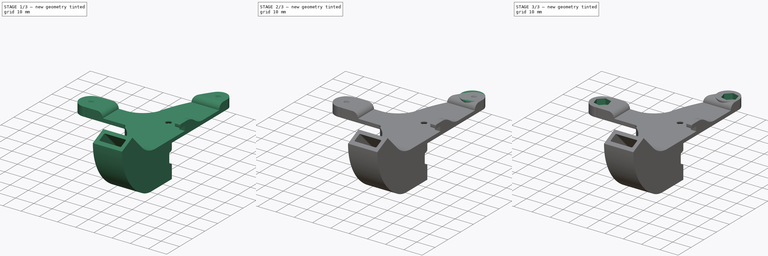
[diagram: build sequence overview — one tinted view per stage of 3, left to right]
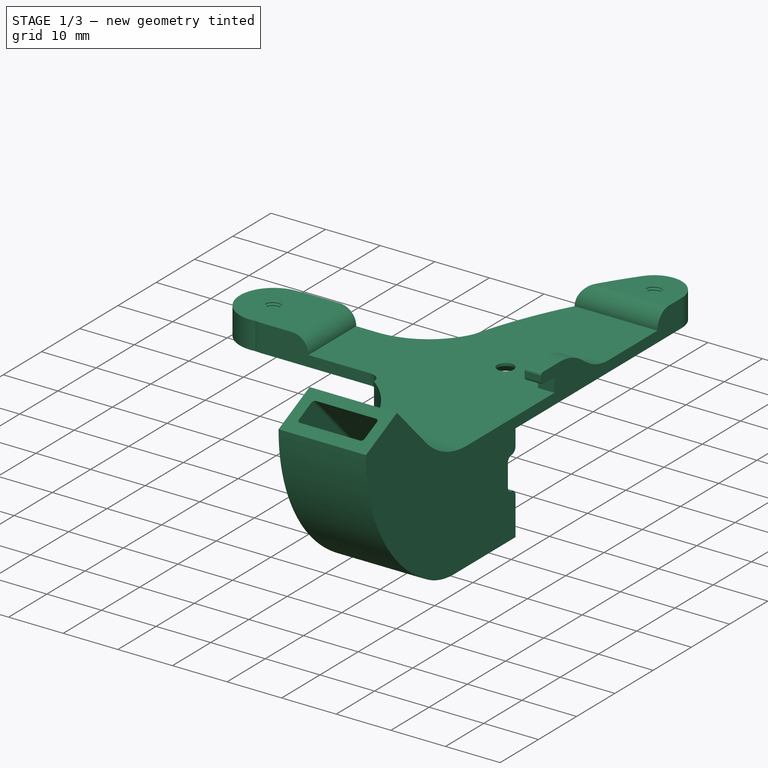
[diagram: stage 1 of 3 — iso view after this stage's code; geometry added in this stage tinted green]
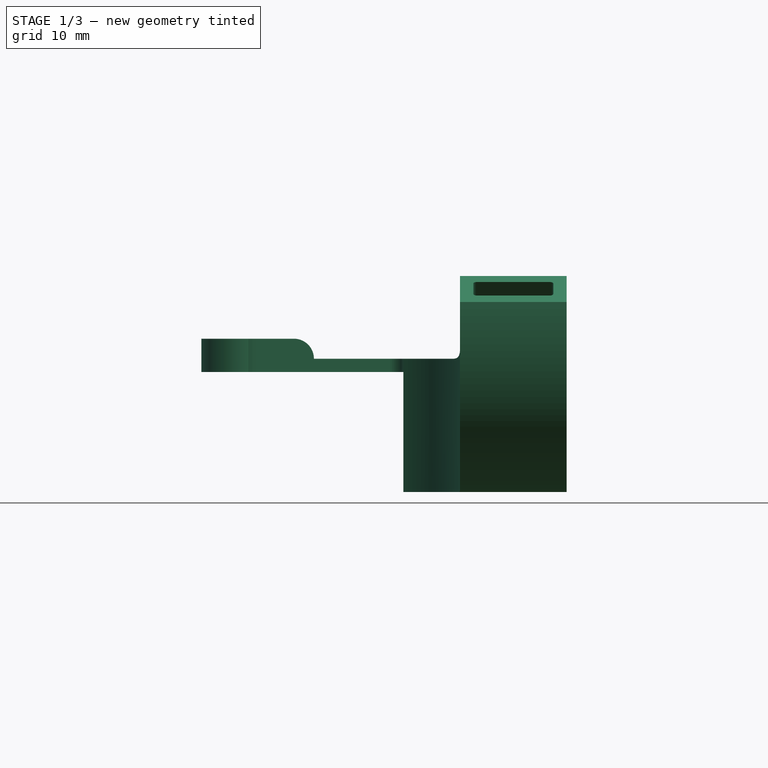
[diagram: stage 1 of 3 — front view after this stage's code; geometry added in this stage tinted green]
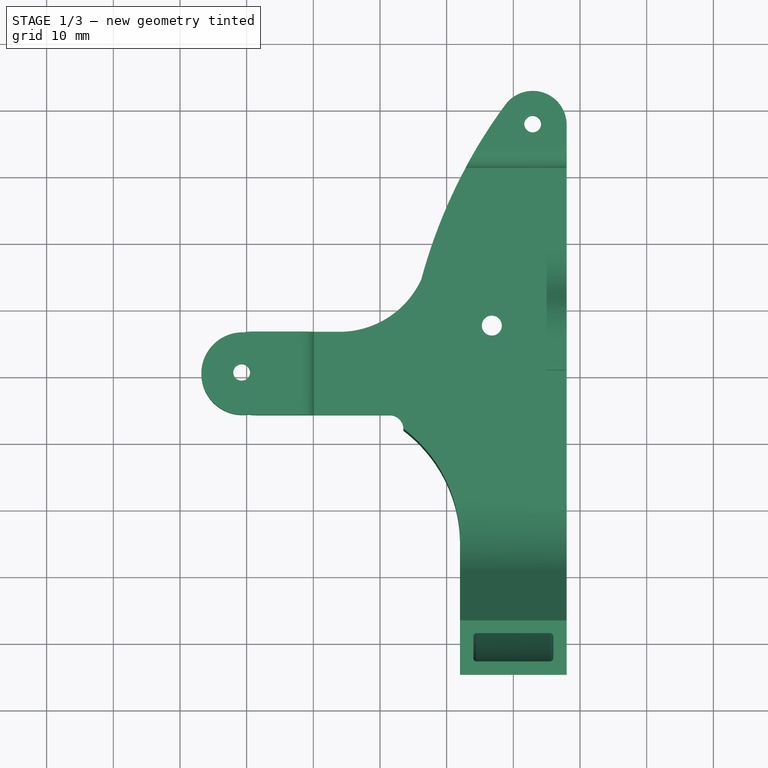
[diagram: stage 1 of 3 — top view after this stage's code; geometry added in this stage tinted green]
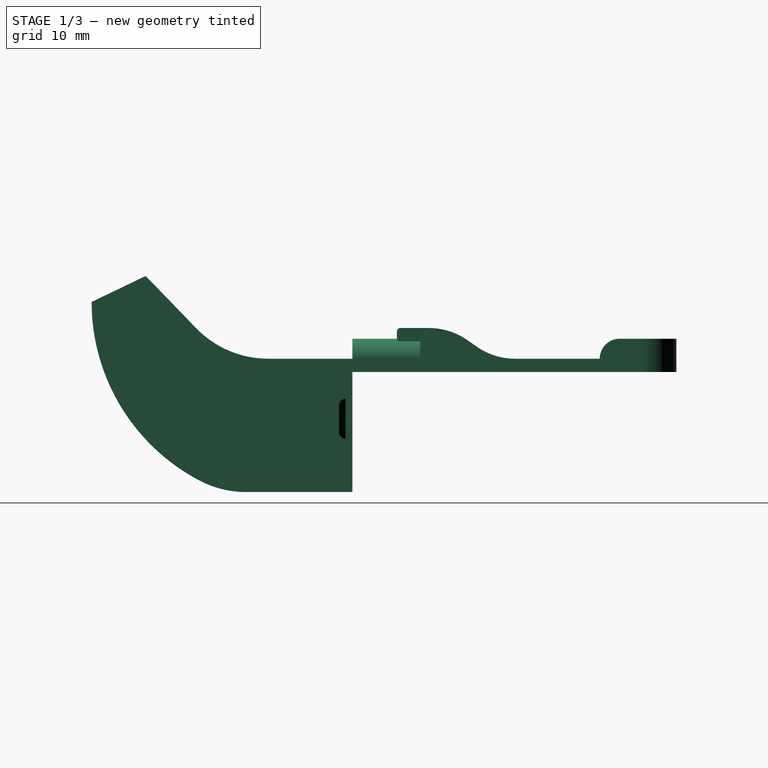
[diagram: stage 1 of 3 — right view after this stage's code; geometry added in this stage tinted green]
FCSTD DOCUMENT  (FreeCAD 0.22R37841 (Git))
Label: FanDuctLeft
License: All rights reserved
LicenseURL: http://en.wikipedia.org/wiki/All_rights_reserved
objects: Sketcher::SketchObject×4, PartDesign::Pad×2, PartDesign::Pocket×2, Part::Feature×1, Part::Refine×1, PartDesign::FeatureBase×1, PartDesign::Body×1
note: 16 computed .brp shape members not serialized (recipe doc carries the construction recipe); baked Part::Feature solids carry a one-line shape summary decoded from their .brp

FEATURE [Part::Feature] duct_left_v001_solid  label="duct_left_v001 (Solid)"
  shape: bbox 53.34 x 87.71 x 32.41 mm, 13702 faces (baked)
FEATURE [Part::Refine] duct_left_v001_solid001  label="duct_left_v001 (Solid)001"
  Source = -> duct_left_v001_solid
FEATURE [PartDesign::FeatureBase] BaseFeature
  BaseFeature = -> duct_left_v001_solid001
  Suppressed = false
FEATURE [Sketcher::SketchObject] Sketch
  AttachmentSupport = -> [BaseFeature]
  FullyConstrained = false
  MapMode = 5
  Placement = pos=(0,0,23) rot=(0,0,1;0rad)
  sketch-geometry (7):
    g0: LineSegment StartX=5.68145 StartY=30.5549 StartZ=0 EndX=1.81775 EndY=31.5902 EndZ=0
    g1: LineSegment StartX=1.81775 StartY=31.5902 StartZ=0 EndX=-1.01068 EndY=28.7618 EndZ=0
    g2: LineSegment StartX=-1.01068 StartY=28.7618 StartZ=0 EndX=0.0246014 EndY=24.8981 EndZ=0
    g3: LineSegment StartX=0.0246014 StartY=24.8981 StartZ=0 EndX=3.88831 EndY=23.8628 EndZ=0
    g4: LineSegment StartX=3.88831 StartY=23.8628 StartZ=0 EndX=6.71673 EndY=26.6912 EndZ=0
    g5: LineSegment StartX=6.71673 StartY=26.6912 StartZ=0 EndX=5.68145 EndY=30.5549 EndZ=0
    g6: Circle CenterX=2.85303 CenterY=27.7265 CenterZ=0 NormalX=0 NormalY=0 NormalZ=1 AngleXU=0 Radius=4
  constraints (14):
    c: Coincident(g0,g1)
    c: Coincident(g1,g2)
    c: Coincident(g2,g3)
    c: Coincident(g3,g4)
    c: Coincident(g4,g5)
    c: Coincident(g5,g0)
    c: Equal(g0, g1-g5) x5
    c: PointOnObject(g0,g6)
    c: PointOnObject(g1,g6)
    c: PointOnObject(g2,g6)
    c: PointOnObject(g3,g6)
    c: PointOnObject(g4,g6)
    c: PointOnObject(g5,g6)
    c: Radius(g6) = 4
FEATURE [Sketcher::SketchObject] Sketch001
  FullyConstrained = false
  Placement = pos=(0,0,23) rot=(0,0,1;0rad)
  sketch-geometry (7):
    g0: LineSegment StartX=-37.9363 StartY=-6.75655 StartZ=0 EndX=-41.8 EndY=-5.72128 EndZ=0
    g1: LineSegment StartX=-41.8 StartY=-5.72128 StartZ=0 EndX=-44.6284 EndY=-8.54971 EndZ=0
    g2: LineSegment StartX=-44.6284 StartY=-8.54971 StartZ=0 EndX=-43.5931 EndY=-12.4134 EndZ=0
    g3: LineSegment StartX=-43.5931 StartY=-12.4134 StartZ=0 EndX=-39.7294 EndY=-13.4487 EndZ=0
    g4: LineSegment StartX=-39.7294 StartY=-13.4487 StartZ=0 EndX=-36.901 EndY=-10.6203 EndZ=0
    g5: LineSegment StartX=-36.901 StartY=-10.6203 StartZ=0 EndX=-37.9363 EndY=-6.75655 EndZ=0
    g6: Circle CenterX=-40.7647 CenterY=-9.58498 CenterZ=0 NormalX=0 NormalY=0 NormalZ=1 AngleXU=0 Radius=4
  constraints (14):
    c: Coincident(g0,g1)
    c: Coincident(g1,g2)
    c: Coincident(g2,g3)
    c: Coincident(g3,g4)
    c: Coincident(g4,g5)
    c: Coincident(g5,g0)
    c: Equal(g0, g1-g5) x5
    c: PointOnObject(g0,g6)
    c: PointOnObject(g1,g6)
    c: PointOnObject(g2,g6)
    c: PointOnObject(g3,g6)
    c: PointOnObject(g4,g6)
    c: PointOnObject(g5,g6)
    c: Radius(g6) = 4
FEATURE [Sketcher::SketchObject] Sketch002
  FullyConstrained = false
  MapMode = 5
  Placement = pos=(0,0,23) rot=(0,0,1;0rad)
  sketch-geometry (6):
    g0: ArcOfCircle CenterX=-40.6187 CenterY=-9.79827 CenterZ=0 NormalX=0 NormalY=0 NormalZ=1 AngleXU=0 Radius=6.18002 StartAngle=1.63144 EndAngle=4.87276
    g1: LineSegment StartX=-40.9933 StartY=-3.62961 StartZ=0 EndX=-40.9933 EndY=-7.66164 EndZ=0
    g2: LineSegment StartX=-40.5279 StartY=-11.8836 StartZ=0 EndX=-39.6318 EndY=-15.899 EndZ=0
    g3: ArcOfCircle CenterX=-40.9933 CenterY=-9.79827 CenterZ=0 NormalX=0 NormalY=0 NormalZ=1 AngleXU=0 Radius=2.13662 StartAngle=1.5708 EndAngle=4.93195
    g4: LineSegment StartX=-40.9933 StartY=-3.62961 StartZ=0 EndX=-38.1412 EndY=-3.62961 EndZ=0
    g5: LineSegment StartX=-38.1412 StartY=-3.62961 StartZ=0 EndX=-40.9933 EndY=-7.66164 EndZ=0
  constraints (10):
    c: Vertical(g1)
    c: PointOnObject(g3,g2)
    c: Coincident(g0,g2)
    c: Coincident(g0,g1)
    c: Coincident(g3,g2)
    c: Coincident(g3,g1)
    c: Coincident(g4,g0)
    c: Horizontal(g4)
    c: Coincident(g5,g4)
    c: Coincident(g5,g1)
FEATURE [PartDesign::Pad] Pad
  BaseFeature = -> BaseFeature
  Direction = (0,0,1)
  Length = 5
  Length2 = 10
  Profile = -> Sketch002
  ReferenceAxis = -> Sketch002 [N_Axis]
  Reversed = true
  Suppressed = false
  Type = 0
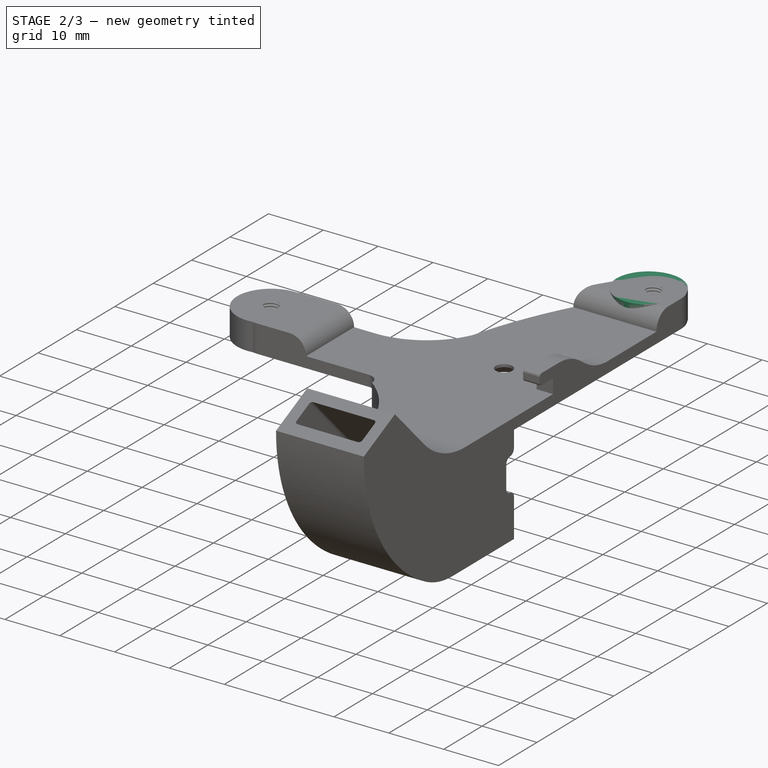
[diagram: stage 2 of 3 — iso view after this stage's code; geometry added in this stage tinted green]
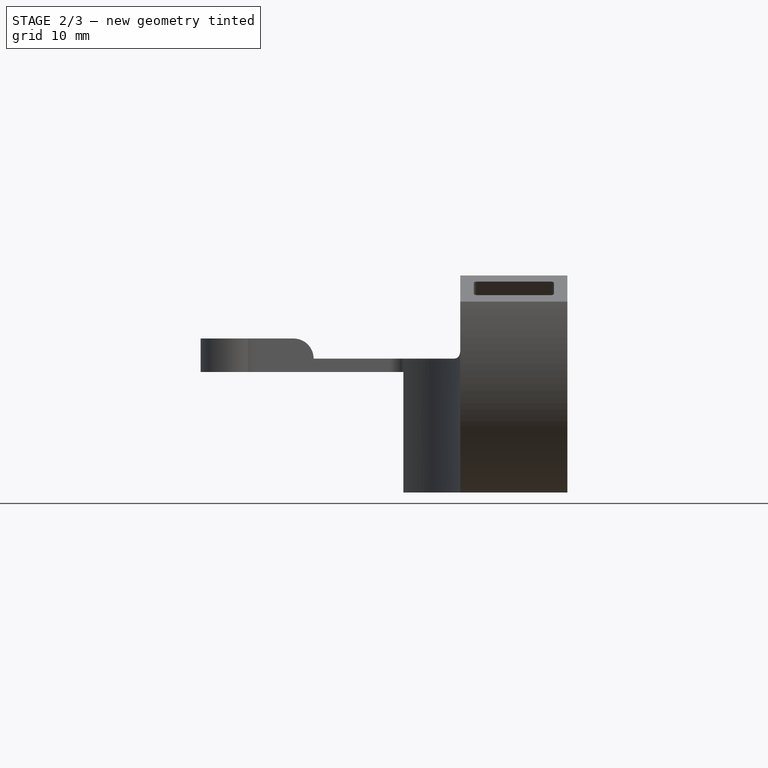
[diagram: stage 2 of 3 — front view after this stage's code; geometry added in this stage tinted green]
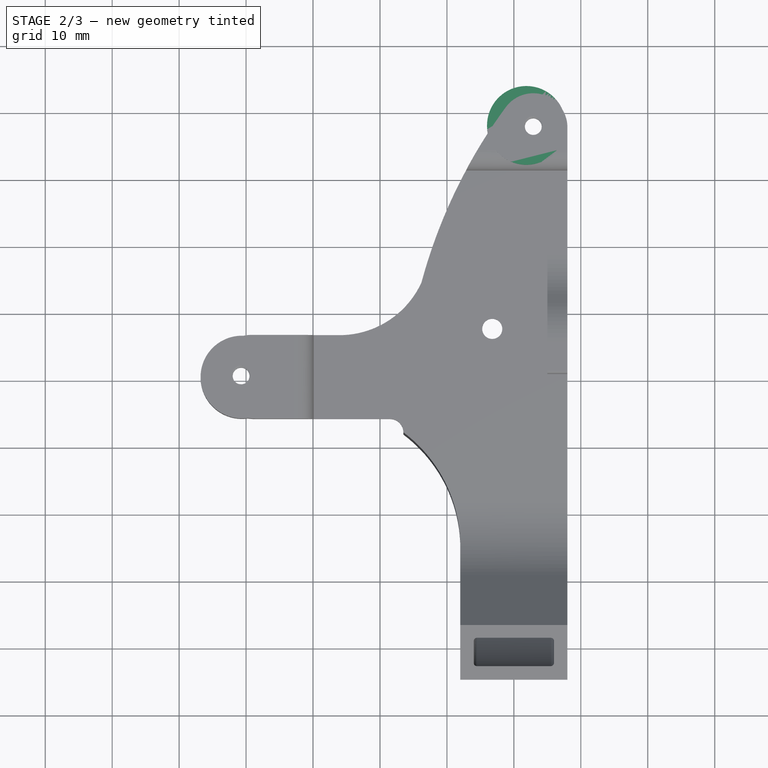
[diagram: stage 2 of 3 — top view after this stage's code; geometry added in this stage tinted green]
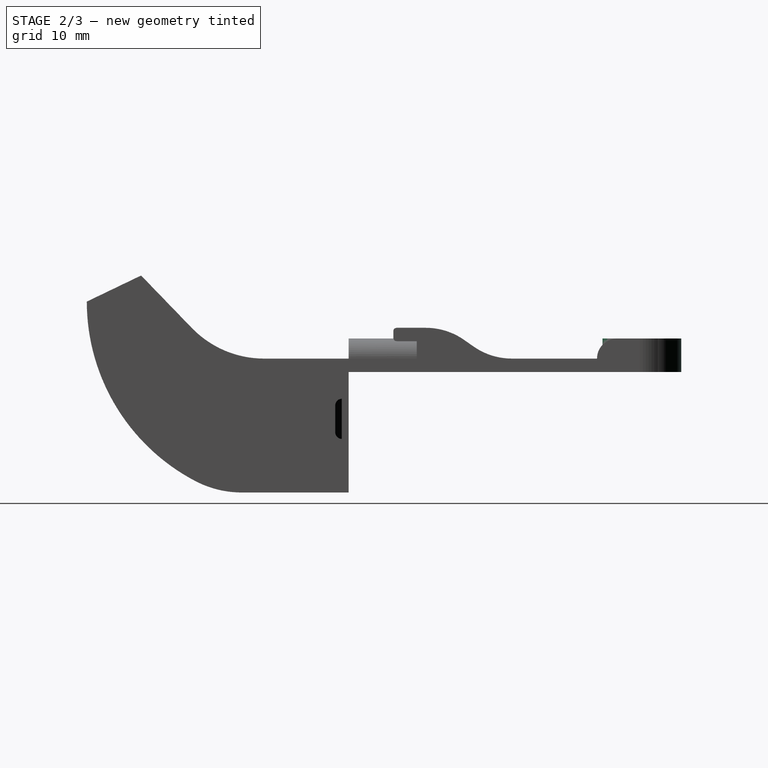
[diagram: stage 2 of 3 — right view after this stage's code; geometry added in this stage tinted green]
FEATURE [Sketcher::SketchObject] Sketch003
  FullyConstrained = false
  MapMode = 5
  Placement = pos=(0,0,23) rot=(0,0,1;0rad)
  sketch-geometry (14):
    g0: LineSegment StartX=-4.10895 StartY=24.2897 StartZ=0 EndX=8.00445 EndY=24.2897 EndZ=0
    g1: LineSegment StartX=8.00445 StartY=24.2897 StartZ=0 EndX=8.00445 EndY=31.9664 EndZ=0
    g2: LineSegment StartX=6.85563 StartY=33.1152 StartZ=0 EndX=-2.83139 EndY=33.1152 EndZ=0
    g3: LineSegment StartX=-4.10895 StartY=31.8377 StartZ=0 EndX=-4.10895 EndY=26.9628 EndZ=0
    g4: LineSegment StartX=-4.51349 StartY=25.5122 StartZ=0 EndX=-5.21004 EndY=24.3605 EndZ=0
    g5: LineSegment StartX=-4.10895 StartY=24.2897 StartZ=0 EndX=-5.21004 EndY=24.3605 EndZ=0
    g6: ArcOfCircle CenterX=-2.83139 CenterY=31.8377 CenterZ=0 NormalX=0 NormalY=0 NormalZ=1 AngleXU=0 Radius=1.27756 StartAngle=1.5708 EndAngle=3.14159
    g7: GeomPoint X=-4.10895 Y=33.1152 Z=0
    g8: ArcOfCircle CenterX=6.85563 CenterY=31.9664 CenterZ=0 NormalX=0 NormalY=0 NormalZ=1 AngleXU=0 Radius=1.14881 StartAngle=2e-16 EndAngle=1.5708
    g9: GeomPoint X=8.00445 Y=33.1152 Z=0
    g10: Circle CenterX=2.92181 CenterY=27.7993 CenterZ=0 NormalX=0 NormalY=0 NormalZ=1 AngleXU=0 Radius=1.86146
    g11: ArcOfCircle CenterX=-6.91192 CenterY=26.9628 CenterZ=0 NormalX=0 NormalY=0 NormalZ=1 AngleXU=0 Radius=2.80297 StartAngle=5.73924 EndAngle=6.28319
    g12: GeomPoint X=-4.10895 Y=26.1811 Z=0
    g13: Circle CenterX=1.87337 CenterY=27.7976 CenterZ=0 NormalX=0 NormalY=0 NormalZ=1 AngleXU=0 Radius=5.88163
  constraints (19):
    c: Coincident(g0,g1)
    c: Horizontal(g0)
    c: Horizontal(g2)
    c: Vertical(g1)
    c: Vertical(g3)
    c: Coincident(g5,g0)
    c: Coincident(g5,g4)
    c: PointOnObject(g7,g2)
    c: PointOnObject(g7,g3)
    c: Tangent(g2,g6) = -1.5708
    c: Tangent(g3,g6) = -1.5708
    c: PointOnObject(g9,g1)
    c: PointOnObject(g9,g2)
    c: Tangent(g1,g8) = -1.5708
    c: Tangent(g2,g8) = -1.5708
    c: PointOnObject(g12,g3)
    c: PointOnObject(g12,g4)
    c: Tangent(g3,g11) = 1.5708
    c: Tangent(g4,g11) = 1.5708
FEATURE [PartDesign::Pad] Pad001
  BaseFeature = -> Pad
  Direction = (0,0,1)
  Length = 5
  Length2 = 10
  Profile = -> Sketch003
  ReferenceAxis = -> Sketch003 [N_Axis]
  Reversed = true
  Suppressed = false
  Type = 0
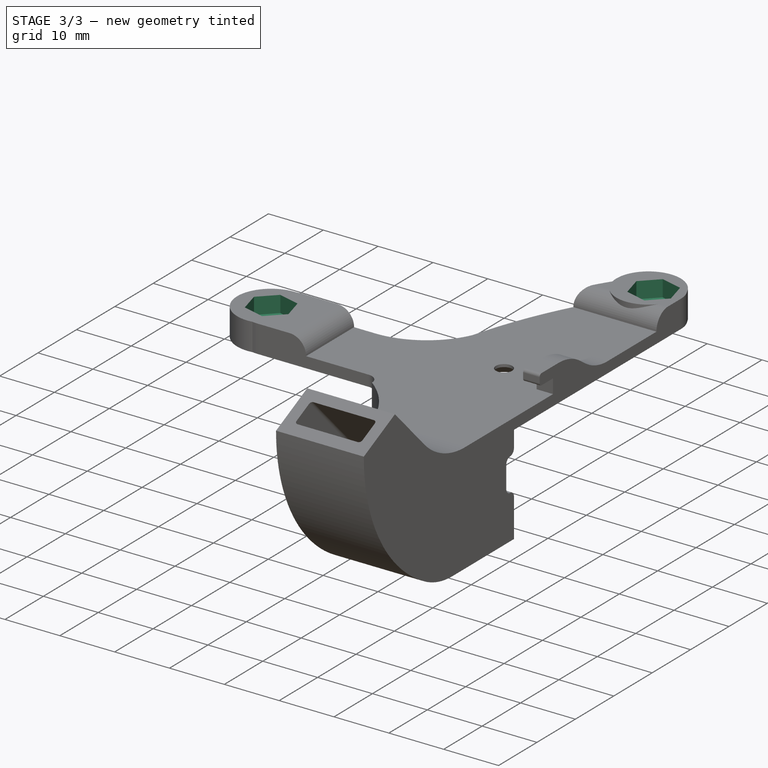
[diagram: stage 3 of 3 — iso view after this stage's code; geometry added in this stage tinted green]
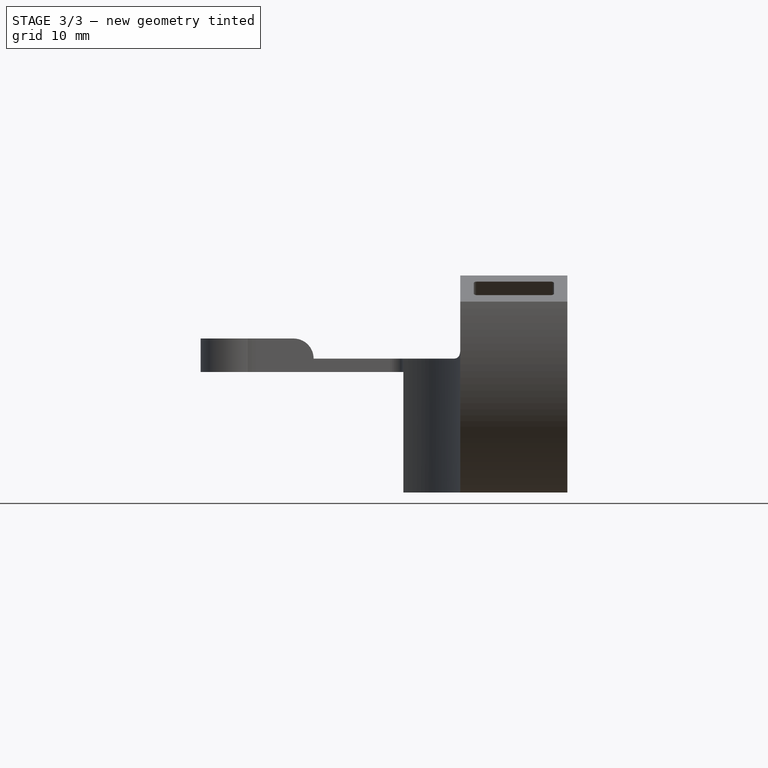
[diagram: stage 3 of 3 — front view after this stage's code; geometry added in this stage tinted green]
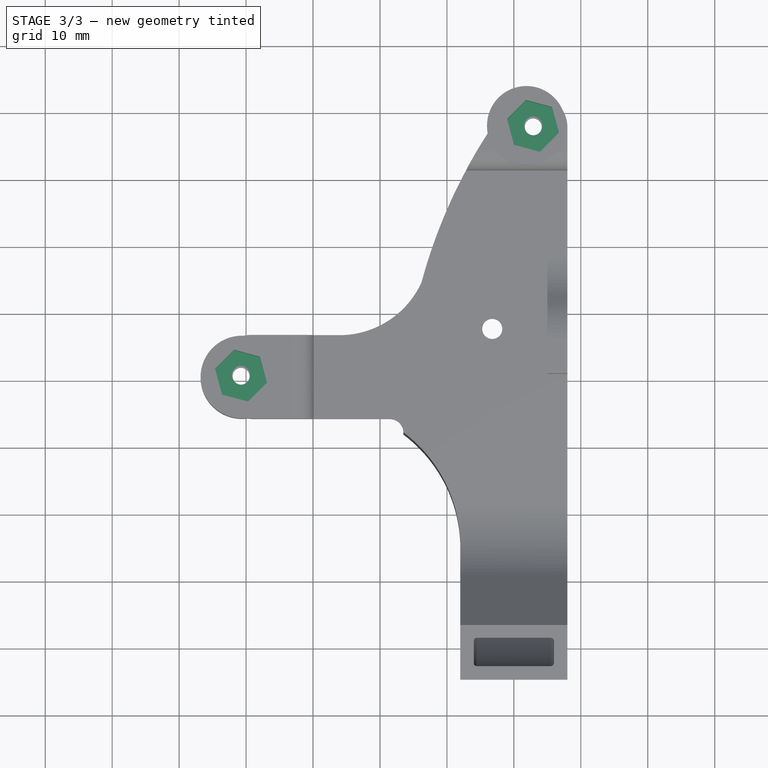
[diagram: stage 3 of 3 — top view after this stage's code; geometry added in this stage tinted green]
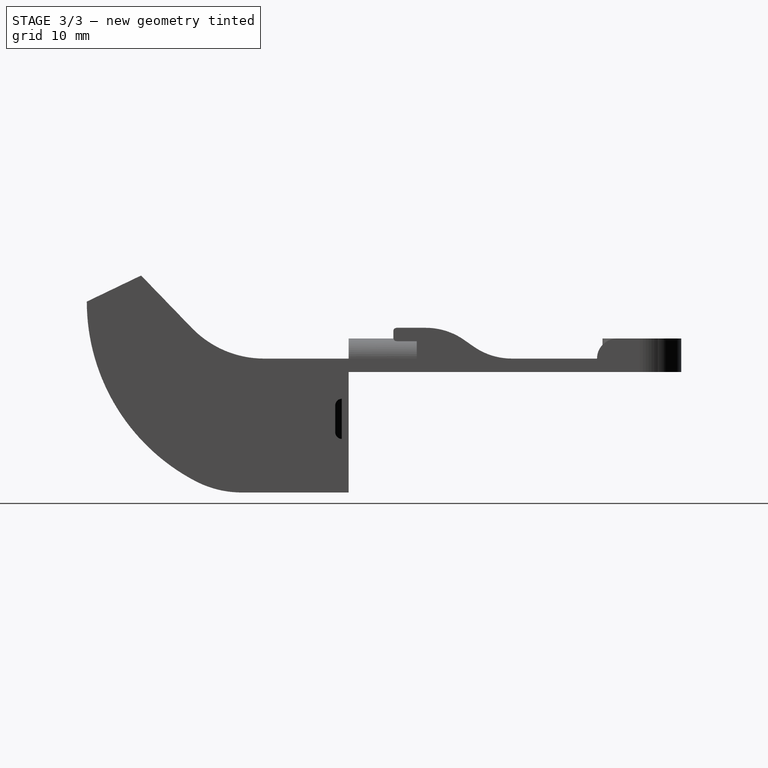
[diagram: stage 3 of 3 — right view after this stage's code; geometry added in this stage tinted green]
FEATURE [PartDesign::Pocket] Pocket
  BaseFeature = -> Pad001
  Direction = (0,0,-1)
  Length = 3
  Length2 = 5
  Profile = -> Sketch
  ReferenceAxis = -> Sketch [N_Axis]
  Suppressed = false
  Type = 0
FEATURE [PartDesign::Pocket] Pocket001
  BaseFeature = -> Pocket
  Direction = (0,0,-1)
  Length = 3
  Length2 = 5
  Profile = -> Sketch001
  ReferenceAxis = -> Sketch001 [N_Axis]
  Suppressed = false
  Type = 0
FEATURE [PartDesign::Body] Body
  AllowCompound = false
  BaseFeature = -> duct_left_v001_solid001
  Group = -> [BaseFeature,Sketch,Sketch001,Sketch002,Pad,Sketch003,Pad001,Pocket,Pocket001]
  Origin = -> Origin
  Tip = -> Pocket001
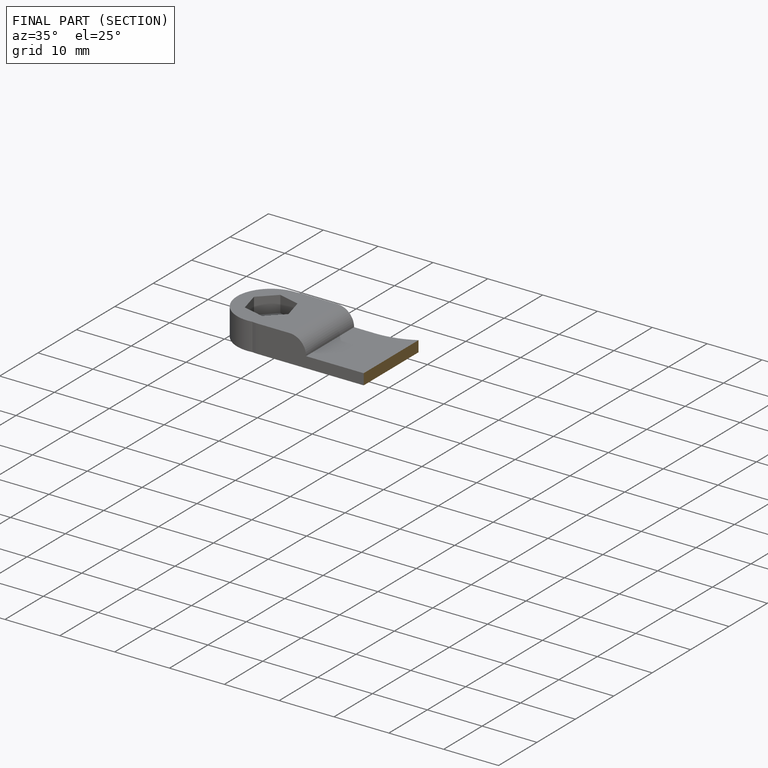
[diagram: finished part — half-section view (interior)]
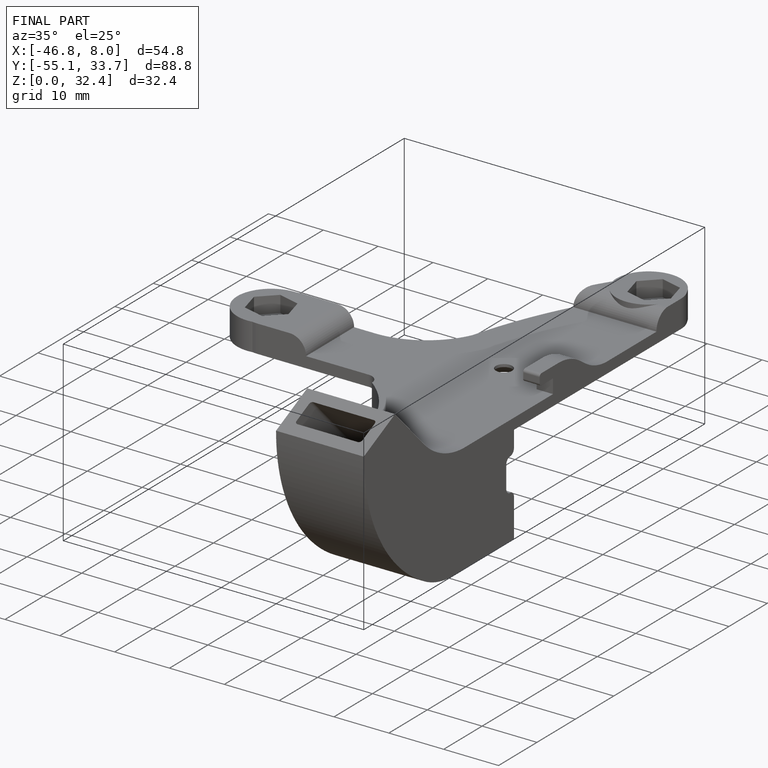
[diagram: finished part — iso view with bounding-box wireframe]
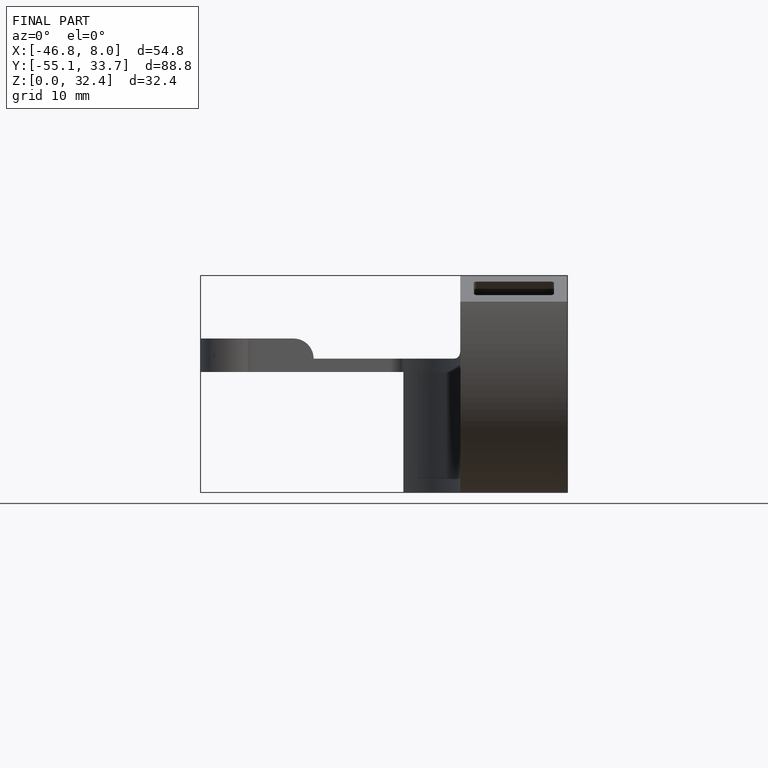
[diagram: finished part — front view with bounding-box wireframe]
